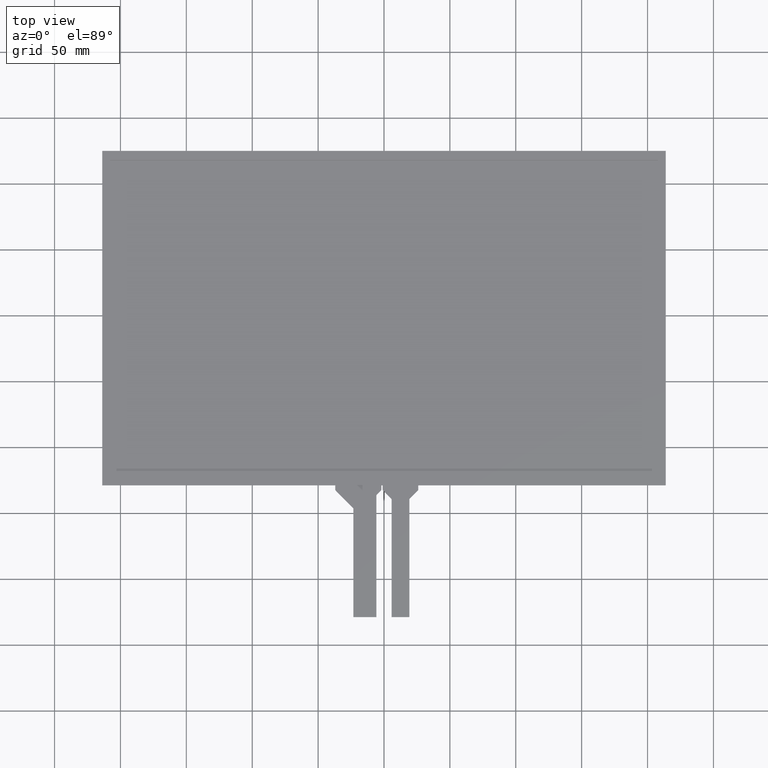
[diagram: clean part render]
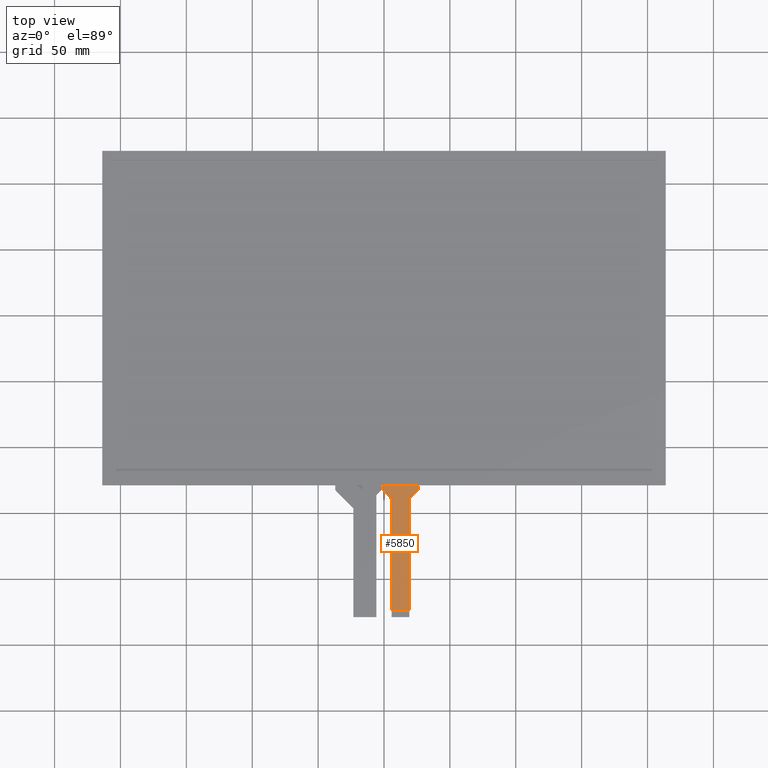
[diagram: same view with one face highlighted and labeled with its STEP entity id]
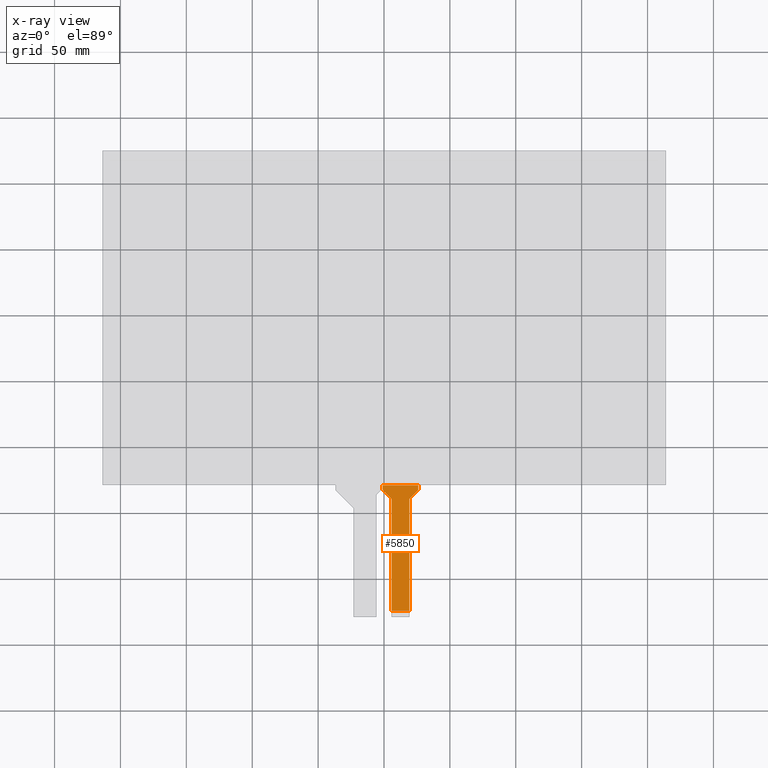
[diagram: x-ray of the same camera — body ghosted, the highlighted face saturated]
A machine part, top view. The second image highlights one B-rep face of the part: STEP entity #5850.
The next image is the same camera in x-ray: the body ghosted, the highlighted face saturated — about 0% of this face is hidden behind the body in this view.
In plain terms, the highlighted planar face has unit normal (0, 0, 1).
Its self-contained STEP definition (entity closure, byte-faithful):
#90=PLANE('',#6168);
#374=FACE_OUTER_BOUND('',#668,.T.);
#668=EDGE_LOOP('',(#4126,#4127,#4128,#4129,#4130,#4131,#4132,#4133,#4134,
#4135,#4136,#4137));
#964=LINE('',#7968,#1804);
#974=LINE('',#7991,#1814);
#975=LINE('',#7994,#1815);
#976=LINE('',#7996,#1816);
#977=LINE('',#7998,#1817);
#978=LINE('',#8002,#1818);
#979=LINE('',#8006,#1819);
#980=LINE('',#8007,#1820);
#1804=VECTOR('',#6490,10.);
#1814=VECTOR('',#6508,10.);
#1815=VECTOR('',#6511,10.);
#1816=VECTOR('',#6512,10.);
#1817=VECTOR('',#6513,10.);
#1818=VECTOR('',#6516,10.);
#1819=VECTOR('',#6519,10.);
#1820=VECTOR('',#6520,10.);
#2642=CIRCLE('',#6161,1.);
#2645=CIRCLE('',#6166,1.);
#2646=CIRCLE('',#6169,1.);
#2647=CIRCLE('',#6170,1.);
#2666=VERTEX_POINT('',#7958);
#2667=VERTEX_POINT('',#7959);
#2670=VERTEX_POINT('',#7967);
#2678=VERTEX_POINT('',#7984);
#2679=VERTEX_POINT('',#7986);
#2680=VERTEX_POINT('',#7993);
#2681=VERTEX_POINT('',#7995);
#2682=VERTEX_POINT('',#7997);
#2683=VERTEX_POINT('',#7999);
#2684=VERTEX_POINT('',#8001);
#2685=VERTEX_POINT('',#8003);
#2686=VERTEX_POINT('',#8005);
#3242=EDGE_CURVE('',#2666,#2667,#2642,.T.);
#3246=EDGE_CURVE('',#2670,#2667,#964,.T.);
#3255=EDGE_CURVE('',#2678,#2679,#2645,.T.);
#3258=EDGE_CURVE('',#2666,#2679,#974,.T.);
#3259=EDGE_CURVE('',#2678,#2680,#975,.T.);
#3260=EDGE_CURVE('',#2681,#2680,#976,.T.);
#3261=EDGE_CURVE('',#2681,#2682,#977,.T.);
#3262=EDGE_CURVE('',#2683,#2682,#2646,.T.);
#3263=EDGE_CURVE('',#2683,#2684,#978,.T.);
#3264=EDGE_CURVE('',#2685,#2684,#2647,.T.);
#3265=EDGE_CURVE('',#2685,#2686,#979,.T.);
#3266=EDGE_CURVE('',#2686,#2670,#980,.T.);
#4126=ORIENTED_EDGE('',*,*,#3255,.F.);
#4127=ORIENTED_EDGE('',*,*,#3259,.T.);
#4128=ORIENTED_EDGE('',*,*,#3260,.F.);
#4129=ORIENTED_EDGE('',*,*,#3261,.T.);
#4130=ORIENTED_EDGE('',*,*,#3262,.F.);
#4131=ORIENTED_EDGE('',*,*,#3263,.T.);
#4132=ORIENTED_EDGE('',*,*,#3264,.F.);
#4133=ORIENTED_EDGE('',*,*,#3265,.T.);
#4134=ORIENTED_EDGE('',*,*,#3266,.T.);
#4135=ORIENTED_EDGE('',*,*,#3246,.T.);
#4136=ORIENTED_EDGE('',*,*,#3242,.F.);
#4137=ORIENTED_EDGE('',*,*,#3258,.T.);
#5850=ADVANCED_FACE('',(#374),#90,.T.);
#6161=AXIS2_PLACEMENT_3D('',#7960,#6482,#6483);
#6166=AXIS2_PLACEMENT_3D('',#7987,#6502,#6503);
#6168=AXIS2_PLACEMENT_3D('',#7992,#6509,#6510);
#6169=AXIS2_PLACEMENT_3D('',#8000,#6514,#6515);
#6170=AXIS2_PLACEMENT_3D('',#8004,#6517,#6518);
#6482=DIRECTION('center_axis',(0.,0.,1.));
#6483=DIRECTION('ref_axis',(-0.923166632761976,0.384400010607329,0.));
#6490=DIRECTION('',(-4.9508273115949E-16,1.,0.));
#6502=DIRECTION('center_axis',(0.,0.,-1.));
#6503=DIRECTION('ref_axis',(0.923166632761976,-0.384400010607329,0.));
#6508=DIRECTION('',(0.709730526852055,0.704473263690187,0.));
#6509=DIRECTION('center_axis',(0.,0.,1.));
#6510=DIRECTION('ref_axis',(1.,0.,0.));
#6511=DIRECTION('',(0.,1.,0.));
#6512=DIRECTION('',(1.,1.2462746768477E-16,0.));
#6513=DIRECTION('',(0.,-1.,0.));
#6514=DIRECTION('center_axis',(0.,0.,-1.));
#6515=DIRECTION('ref_axis',(-0.924589240379767,-0.380965532002523,0.));
#6516=DIRECTION('',(0.704473263690186,-0.709730526852056,0.));
#6517=DIRECTION('center_axis',(0.,0.,1.));
#6518=DIRECTION('ref_axis',(0.924589240379767,0.380965532002523,0.));
#6519=DIRECTION('',(1.48691202871585E-16,-1.,0.));
#6520=DIRECTION('',(1.,0.,0.));
#7958=CARTESIAN_POINT('',(19.5455267363098,-138.806662350626,-0.2));
#7959=CARTESIAN_POINT('',(19.25,-139.516392877478,-0.2));
#7960=CARTESIAN_POINT('Origin',(20.25,-139.516392877478,-0.2));
#7967=CARTESIAN_POINT('',(19.25,-223.8,-0.2));
#7968=CARTESIAN_POINT('',(19.25,-228.8,-0.2));
#7984=CARTESIAN_POINT('',(26.,-131.983607122522,-0.2));
#7986=CARTESIAN_POINT('',(25.7044732636902,-132.693337649374,-0.2));
#7987=CARTESIAN_POINT('Origin',(25.,-131.983607122522,-0.2));
#7991=CARTESIAN_POINT('',(19.25,-139.1,-0.2));
#7992=CARTESIAN_POINT('Origin',(12.5,-178.8,-0.2));
#7993=CARTESIAN_POINT('',(26.,-128.8,-0.2));
#7994=CARTESIAN_POINT('',(26.,-132.4,-0.2));
#7995=CARTESIAN_POINT('',(-1.00000000000001,-128.8,-0.2));
#7996=CARTESIAN_POINT('',(113.15,-128.8,-0.2));
#7997=CARTESIAN_POINT('',(-1.00000000000001,-131.987962399556,-0.2));
#7998=CARTESIAN_POINT('',(-1.00000000000001,-128.8,-0.2));
#7999=CARTESIAN_POINT('',(-0.709730526852074,-132.692435663246,-0.2));
#8000=CARTESIAN_POINT('Origin',(-1.49880108324396E-14,-131.987962399556,
-0.2));
#8001=CARTESIAN_POINT('',(5.45973052685204,-138.907937471082,-0.2));
#8002=CARTESIAN_POINT('',(-1.00000000000001,-132.4,-0.2));
#8003=CARTESIAN_POINT('',(5.74999999999998,-139.612410734772,-0.2));
#8004=CARTESIAN_POINT('Origin',(4.74999999999998,-139.612410734772,-0.2));
#8005=CARTESIAN_POINT('',(5.74999999999999,-223.8,-0.2));
#8006=CARTESIAN_POINT('',(5.74999999999998,-139.200373134328,-0.2));
#8007=CARTESIAN_POINT('',(9.12499999999998,-223.8,-0.2));